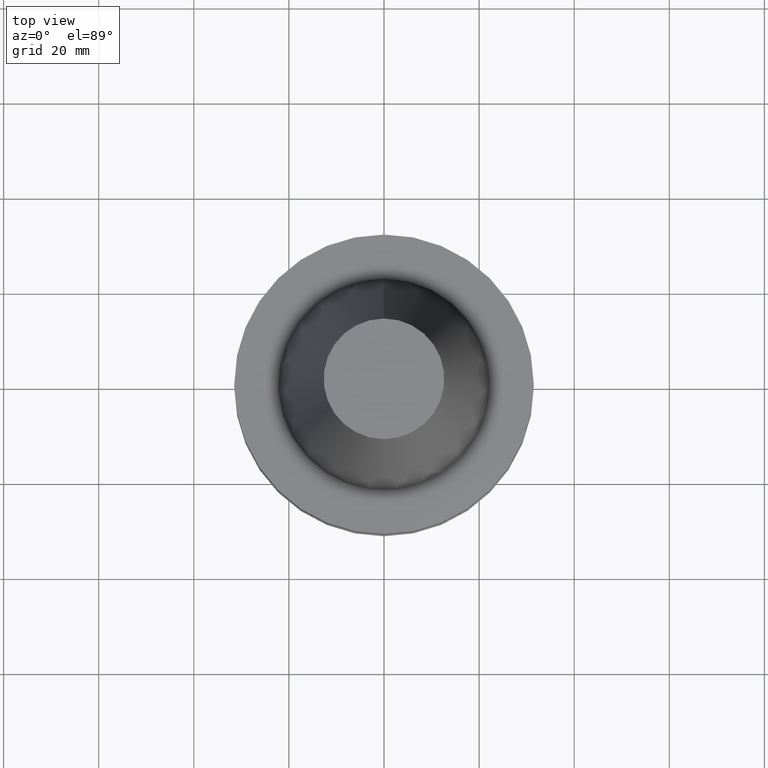
[diagram: clean part render]
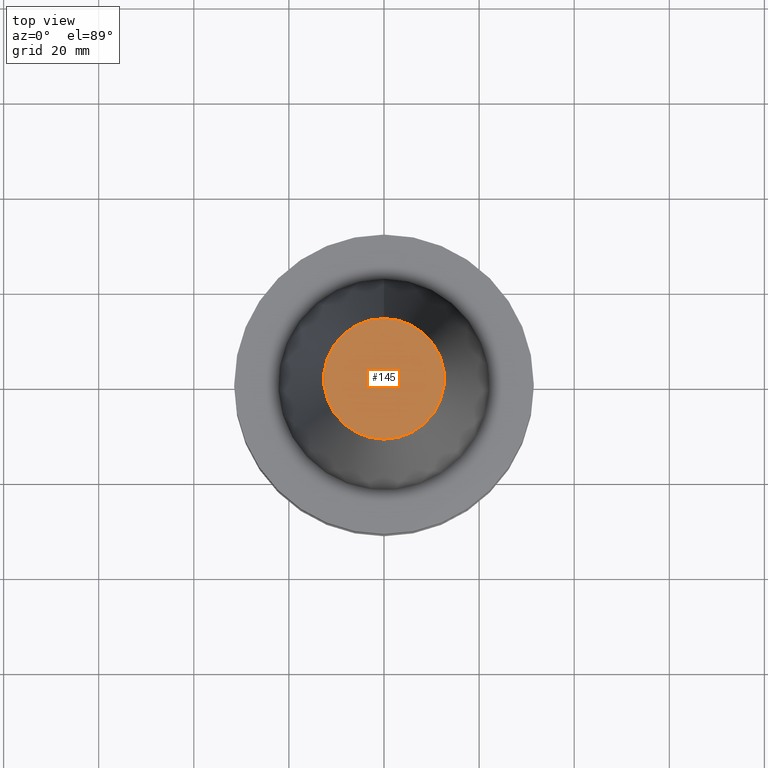
[diagram: same view with one face highlighted and labeled with its STEP entity id]
A machine part, top view. The second image highlights one B-rep face of the part: STEP entity #145.
In plain terms, the highlighted planar face has unit normal (-0, 0, 1).
Its self-contained STEP definition (entity closure, byte-faithful):
#114=EDGE_CURVE('Unnamed[1]',#260,#260,#261,.T.);
#145=ADVANCED_FACE('Unnamed[1]',(#308),#309,.T.);
#260=VERTEX_POINT('',#450);
#261=CIRCLE('',#451,12.6875000000001);
#308=FACE_OUTER_BOUND('',#510,.T.);
#309=PLANE('',#511);
#450=CARTESIAN_POINT('',(-4.00459503321185E-015,12.6875000000002,65.4000000000001));
#451=AXIS2_PLACEMENT_3D('',#645,#646,#647);
#510=EDGE_LOOP('',(#699));
#511=AXIS2_PLACEMENT_3D('',#700,#701,#702);
#645=CARTESIAN_POINT('',(-4.00459503321185E-015,7.66316136430044E-014,65.4000000000001));
#646=DIRECTION('',(6.12323399573677E-017,-5.36731610657179E-016,-1.0));
#647=DIRECTION('',(2.80381797188536E-032,1.0,-5.36731610657179E-016));
#699=ORIENTED_EDGE('',*,*,#114,.F.);
#700=CARTESIAN_POINT('',(-4.00459503321185E-015,6.34375000000014,65.4000000000001));
#701=DIRECTION('',(-6.12323399573677E-017,9.97602686800683E-016,1.0));
#702=DIRECTION('',(-5.62583941297938E-032,-1.0,9.97602686800683E-016));